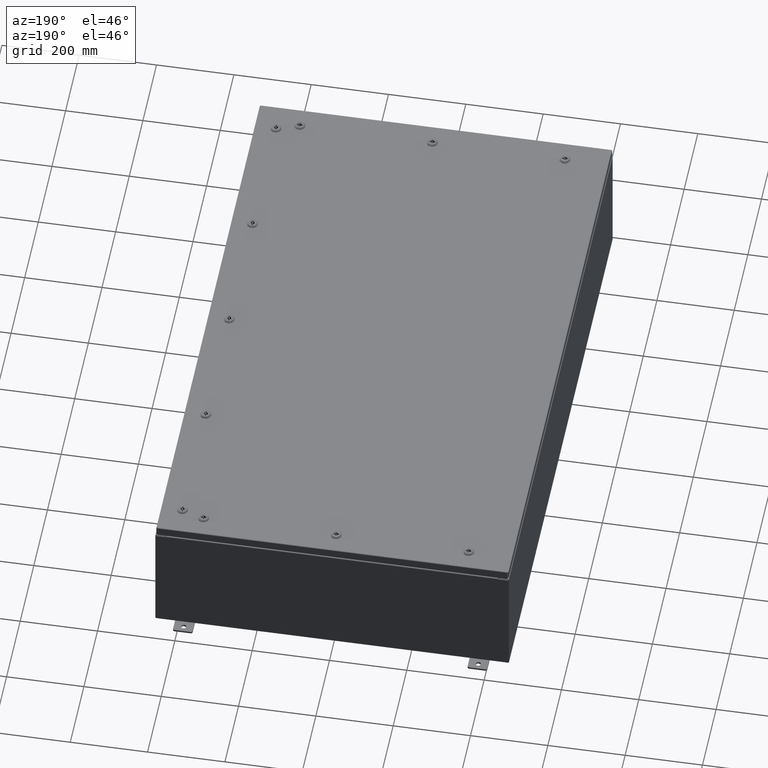
[diagram: clean part render]
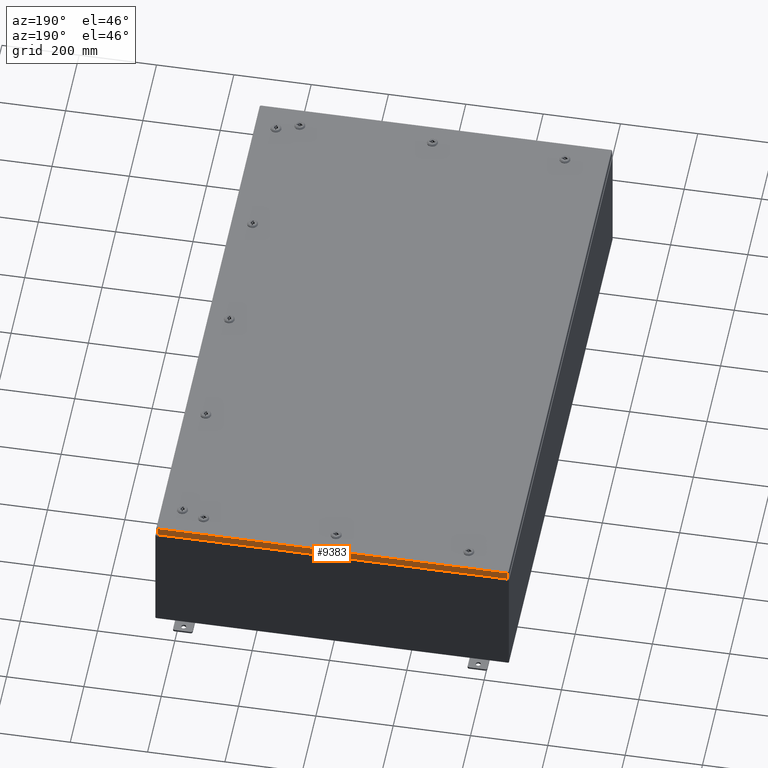
[diagram: same view with one face highlighted and labeled with its STEP entity id]
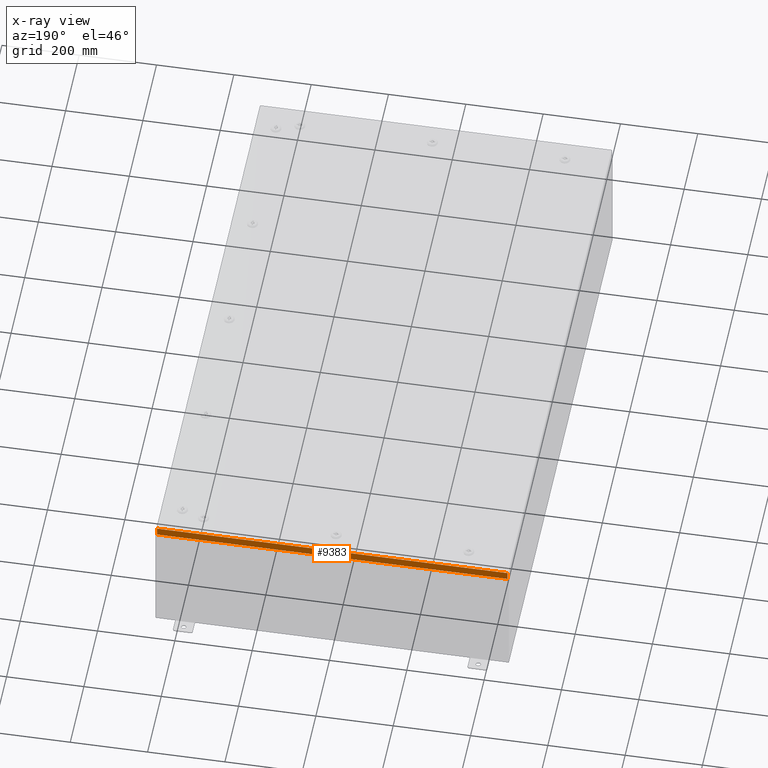
[diagram: x-ray of the same camera — body ghosted, the highlighted face saturated]
A machine part, auxiliary view. The second image highlights one B-rep face of the part: STEP entity #9383.
The next image is the same camera in x-ray: the body ghosted, the highlighted face saturated — about 0% of this face is hidden behind the body in this view.
In plain terms, the highlighted planar face has unit normal (0, -1, -0).
Its self-contained STEP definition (entity closure, byte-faithful):
#169 = VERTEX_POINT ( 'NONE', #45541 ) ;
#455 = VECTOR ( 'NONE', #17972, 39.37007874015748100 ) ;
#1432 = FACE_OUTER_BOUND ( 'NONE', #62173, .T. ) ;
#4263 = CARTESIAN_POINT ( 'NONE',  ( -17.84865786437626800, 29.93750000000000700, -0.08769999999999550400 ) ) ;
#8084 = CARTESIAN_POINT ( 'NONE',  ( 17.84865786437626800, 29.93750000000000700, -0.08769999999999550400 ) ) ;
#9383 = ADVANCED_FACE ( 'NONE', ( #1432 ), #13421, .F. ) ;
#9784 = ORIENTED_EDGE ( 'NONE', *, *, #32619, .F. ) ;
#11568 = LINE ( 'NONE', #49678, #40066 ) ;
#13421 = PLANE ( 'NONE',  #61861 ) ;
#17694 = DIRECTION ( 'NONE',  ( -1.000000000000000000, -6.170925750089125200E-031, -3.189293793798670500E-045 ) ) ;
#17972 = DIRECTION ( 'NONE',  ( 1.000000000000000000, 1.751623080406021300E-046, 1.218385167906012900E-016 ) ) ;
#21620 = VECTOR ( 'NONE', #31247, 39.37007874015748100 ) ;
#27044 = VERTEX_POINT ( 'NONE', #27720 ) ;
#27167 = ORIENTED_EDGE ( 'NONE', *, *, #64725, .F. ) ;
#27362 = CARTESIAN_POINT ( 'NONE',  ( 17.84865786437626800, 29.93750000000000700, 1.518894566415475700E-013 ) ) ;
#27720 = CARTESIAN_POINT ( 'NONE',  ( -17.84865786437626400, 29.93750000000001100, -0.9377000000000042000 ) ) ;
#28967 = LINE ( 'NONE', #66253, #455 ) ;
#31247 = DIRECTION ( 'NONE',  ( -0.0000000000000000000, 5.064839849203706200E-015, -1.000000000000000000 ) ) ;
#32619 = EDGE_CURVE ( 'NONE', #48305, #27044, #34193, .T. ) ;
#32719 = DIRECTION ( 'NONE',  ( 0.0000000000000000000, 5.064839849203706200E-015, -1.000000000000000000 ) ) ;
#33794 = DIRECTION ( 'NONE',  ( 6.170925750089124300E-031, -1.000000000000000000, -5.064839849203706200E-015 ) ) ;
#34193 = LINE ( 'NONE', #63244, #21620 ) ;
#38446 = DIRECTION ( 'NONE',  ( 0.0000000000000000000, 5.064839849203706200E-015, -1.000000000000000000 ) ) ;
#39439 = VECTOR ( 'NONE', #32719, 39.37007874015748100 ) ;
#40066 = VECTOR ( 'NONE', #17694, 39.37007874015748100 ) ;
#41088 = LINE ( 'NONE', #27362, #39439 ) ;
#45541 = CARTESIAN_POINT ( 'NONE',  ( 17.84865786437626800, 29.93750000000001100, -0.9376999999999997600 ) ) ;
#48031 = ORIENTED_EDGE ( 'NONE', *, *, #49321, .T. ) ;
#48305 = VERTEX_POINT ( 'NONE', #4263 ) ;
#49321 = EDGE_CURVE ( 'NONE', #59746, #169, #41088, .T. ) ;
#49678 = CARTESIAN_POINT ( 'NONE',  ( -17.93749999999999600, 29.93750000000000700, -0.08769999999999550400 ) ) ;
#50585 = CARTESIAN_POINT ( 'NONE',  ( -1.847420896432932100E-029, 29.93750000000000700, 1.518894566415475700E-013 ) ) ;
#53849 = EDGE_CURVE ( 'NONE', #59746, #48305, #11568, .T. ) ;
#59746 = VERTEX_POINT ( 'NONE', #8084 ) ;
#61861 = AXIS2_PLACEMENT_3D ( 'NONE', #50585, #33794, #38446 ) ;
#62173 = EDGE_LOOP ( 'NONE', ( #62340, #48031, #27167, #9784 ) ) ;
#62340 = ORIENTED_EDGE ( 'NONE', *, *, #53849, .F. ) ;
#63244 = CARTESIAN_POINT ( 'NONE',  ( -17.84865786437626400, 29.93750000000000700, -0.07469999999999962800 ) ) ;
#64725 = EDGE_CURVE ( 'NONE', #27044, #169, #28967, .T. ) ;
#66253 = CARTESIAN_POINT ( 'NONE',  ( -17.93749999999999600, 29.93750000000001100, -0.9377000000000042000 ) ) ;